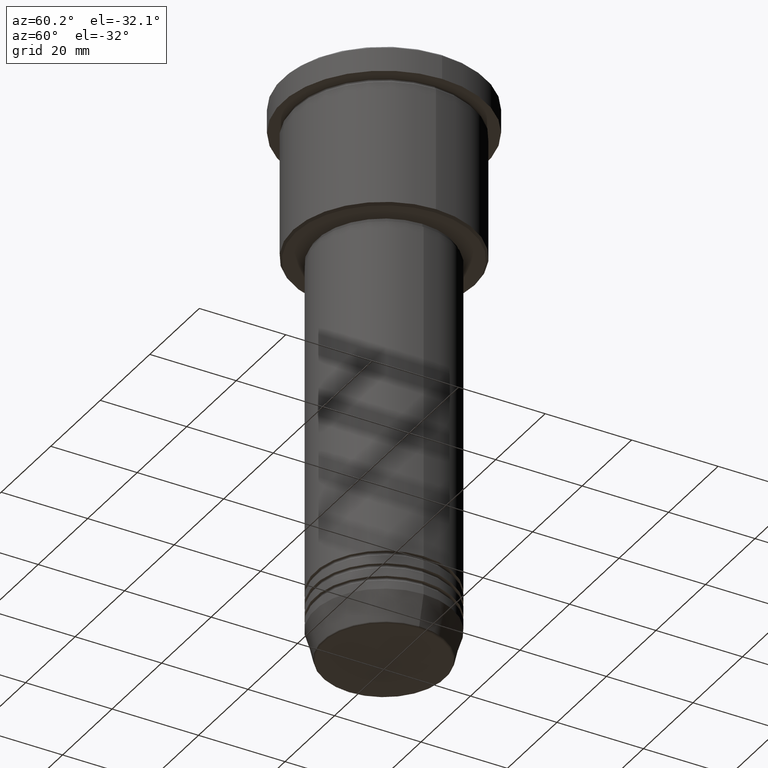
[diagram: clean part render]
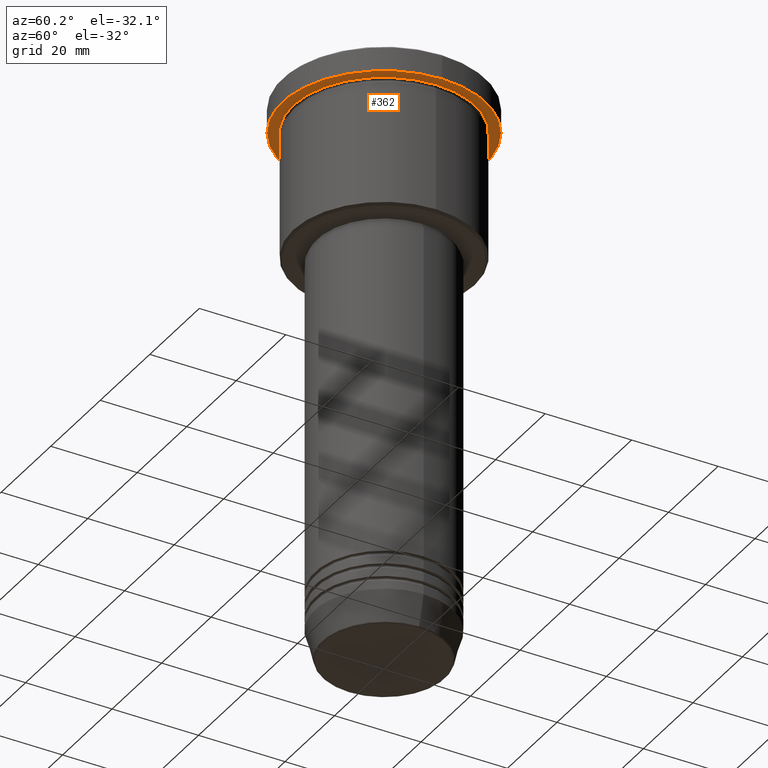
[diagram: same view with one face highlighted and labeled with its STEP entity id]
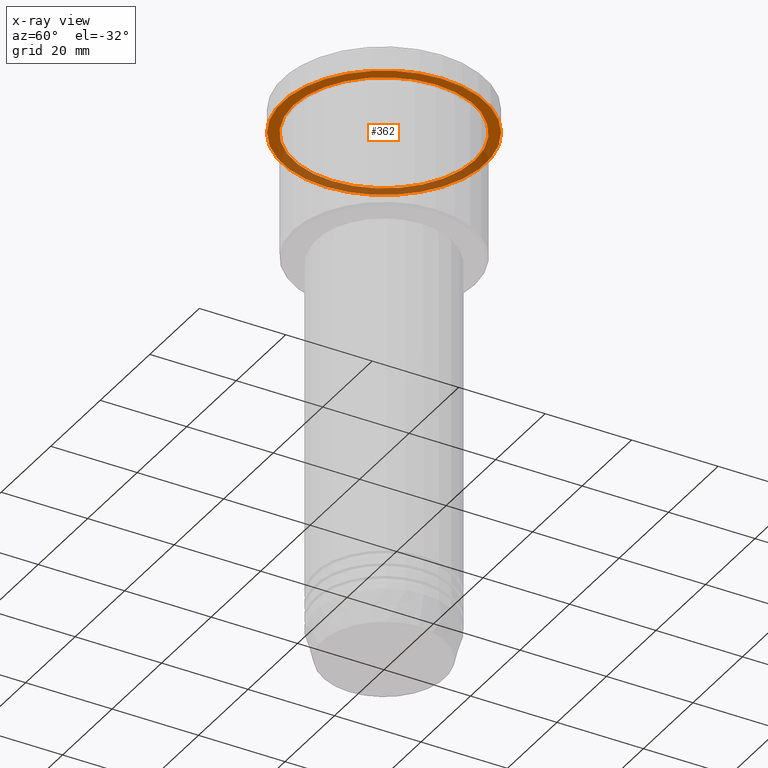
[diagram: x-ray of the same camera — body ghosted, the highlighted face saturated]
A machine part, auxiliary view. The second image highlights one B-rep face of the part: STEP entity #362.
The next image is the same camera in x-ray: the body ghosted, the highlighted face saturated — about 38% of this face is hidden behind the body in this view.
In plain terms, the highlighted planar face has unit normal (0, 0, -1).
Its self-contained STEP definition (entity closure, byte-faithful):
#4 = CIRCLE ( 'NONE', #922, 23.50000000000000000 ) ;
#35 = AXIS2_PLACEMENT_3D ( 'NONE', #393, #484, #303 ) ;
#49 = DIRECTION ( 'NONE',  ( -1.000000000000000000, 0.000000000000000000, -0.000000000000000000 ) ) ;
#56 = CIRCLE ( 'NONE', #829, 21.00000000000000000 ) ;
#62 = EDGE_CURVE ( 'NONE', #1039, #1093, #56, .T. ) ;
#131 = AXIS2_PLACEMENT_3D ( 'NONE', #145, #854, #599 ) ;
#145 = CARTESIAN_POINT ( 'NONE',  ( 0.000000000000000000, 0.000000000000000000, -5.999999999999994671 ) ) ;
#210 = ORIENTED_EDGE ( 'NONE', *, *, #398, .F. ) ;
#211 = CARTESIAN_POINT ( 'NONE',  ( -23.50000000000000000, 2.877919977996280320E-15, -5.999999999999994671 ) ) ;
#249 = CARTESIAN_POINT ( 'NONE',  ( 0.000000000000000000, 0.000000000000000000, -5.999999999999994671 ) ) ;
#281 = CARTESIAN_POINT ( 'NONE',  ( -21.00000000000000000, 0.000000000000000000, -5.999999999999994671 ) ) ;
#303 = DIRECTION ( 'NONE',  ( -1.000000000000000000, 0.000000000000000000, 0.000000000000000000 ) ) ;
#312 = CARTESIAN_POINT ( 'NONE',  ( 0.000000000000000000, 23.50000000000000000, -5.999999999999994671 ) ) ;
#322 = CIRCLE ( 'NONE', #131, 23.50000000000000000 ) ;
#325 = EDGE_CURVE ( 'NONE', #613, #349, #322, .T. ) ;
#349 = VERTEX_POINT ( 'NONE', #680 ) ;
#362 = ADVANCED_FACE ( 'NONE', ( #1052, #578 ), #1132, .T. ) ;
#380 = CIRCLE ( 'NONE', #35, 21.00000000000000000 ) ;
#393 = CARTESIAN_POINT ( 'NONE',  ( 0.000000000000000000, 0.000000000000000000, -5.999999999999994671 ) ) ;
#398 = EDGE_CURVE ( 'NONE', #349, #613, #4, .T. ) ;
#455 = ORIENTED_EDGE ( 'NONE', *, *, #62, .T. ) ;
#484 = DIRECTION ( 'NONE',  ( -0.000000000000000000, -0.000000000000000000, 1.000000000000000000 ) ) ;
#542 = DIRECTION ( 'NONE',  ( -0.000000000000000000, -0.000000000000000000, 1.000000000000000000 ) ) ;
#578 = FACE_OUTER_BOUND ( 'NONE', #959, .T. ) ;
#589 = AXIS2_PLACEMENT_3D ( 'NONE', #312, #1148, #49 ) ;
#599 = DIRECTION ( 'NONE',  ( 1.000000000000000000, 0.000000000000000000, 0.000000000000000000 ) ) ;
#613 = VERTEX_POINT ( 'NONE', #211 ) ;
#680 = CARTESIAN_POINT ( 'NONE',  ( 23.50000000000000000, 0.000000000000000000, -5.999999999999994671 ) ) ;
#761 = ORIENTED_EDGE ( 'NONE', *, *, #325, .F. ) ;
#813 = CARTESIAN_POINT ( 'NONE',  ( 21.00000000000000000, 2.571758278209441661E-15, -5.999999999999994671 ) ) ;
#829 = AXIS2_PLACEMENT_3D ( 'NONE', #249, #983, #1177 ) ;
#854 = DIRECTION ( 'NONE',  ( -0.000000000000000000, -0.000000000000000000, 1.000000000000000000 ) ) ;
#868 = ORIENTED_EDGE ( 'NONE', *, *, #1134, .T. ) ;
#893 = DIRECTION ( 'NONE',  ( 1.000000000000000000, 0.000000000000000000, 0.000000000000000000 ) ) ;
#922 = AXIS2_PLACEMENT_3D ( 'NONE', #1153, #542, #893 ) ;
#959 = EDGE_LOOP ( 'NONE', ( #210, #761 ) ) ;
#983 = DIRECTION ( 'NONE',  ( -0.000000000000000000, -0.000000000000000000, 1.000000000000000000 ) ) ;
#1039 = VERTEX_POINT ( 'NONE', #813 ) ;
#1046 = EDGE_LOOP ( 'NONE', ( #868, #455 ) ) ;
#1052 = FACE_BOUND ( 'NONE', #1046, .T. ) ;
#1093 = VERTEX_POINT ( 'NONE', #281 ) ;
#1132 = PLANE ( 'NONE',  #589 ) ;
#1134 = EDGE_CURVE ( 'NONE', #1093, #1039, #380, .T. ) ;
#1148 = DIRECTION ( 'NONE',  ( 0.000000000000000000, 0.000000000000000000, -1.000000000000000000 ) ) ;
#1153 = CARTESIAN_POINT ( 'NONE',  ( 0.000000000000000000, 0.000000000000000000, -5.999999999999994671 ) ) ;
#1177 = DIRECTION ( 'NONE',  ( -1.000000000000000000, 0.000000000000000000, 0.000000000000000000 ) ) ;